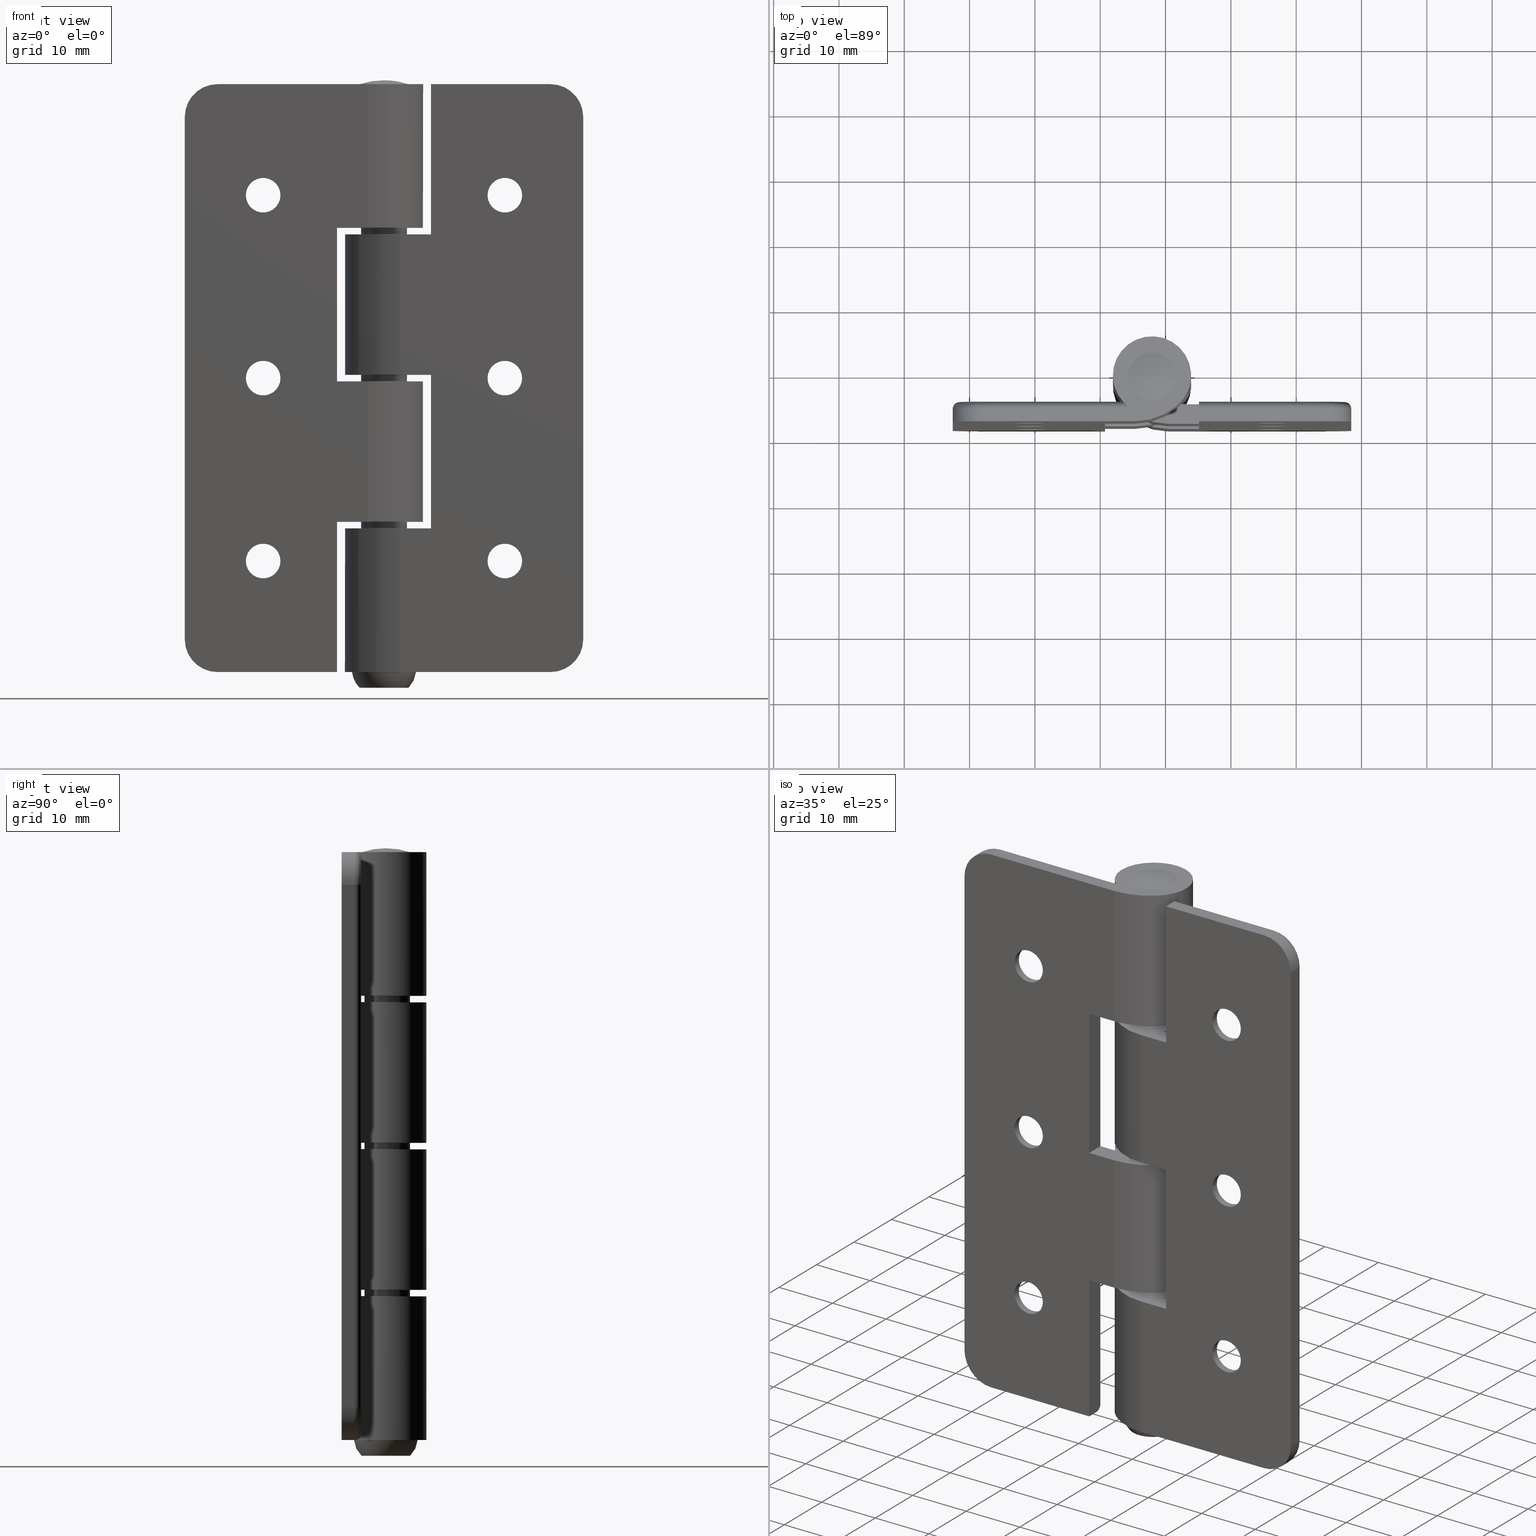
[diagram: canonical four-view strip — front | top / right | iso, engineering-drawing reading convention]
A machine part, canonical four-view strip (front | top / right | iso — engineering-drawing reading convention). The complete STEP part file that produces these views, byte-faithful:
ISO-10303-21;
HEADER;
/* Generated by software containing ST-Developer
 * from STEP Tools, Inc. (www.steptools.com) 
 */

FILE_DESCRIPTION(
/* description */ (''),
/* implementation_level */ '2;1');

FILE_NAME(
/* name */ '\\\\SYNOLOGYNAS\\web\\db2\\HH9061-30\\\X2\B3C4BA74\X0\\\HH
9061-30.stp',
/* time_stamp */ '2025-07-02T16:59:39+09:00',
/* author */ ('user'),
/* organization */ (''),
/* preprocessor_version */ 'ST-DEVELOPER v15.6',
/* originating_system */ 'Autodesk Inventor 2015',
/* authorisation */ '');

FILE_SCHEMA (('AUTOMOTIVE_DESIGN { 1 0 10303 214 3 1 1 }'));
ENDSEC;

DATA;
#10=MECHANICAL_DESIGN_GEOMETRIC_PRESENTATION_REPRESENTATION('',(#30,#31),
#1081);
#11=ITEM_DEFINED_TRANSFORMATION($,$,#598,#674);
#12=ITEM_DEFINED_TRANSFORMATION($,$,#598,#675);
#13=ITEM_DEFINED_TRANSFORMATION($,$,#660,#676);
#14=(
REPRESENTATION_RELATIONSHIP($,$,#1097,#1099)
REPRESENTATION_RELATIONSHIP_WITH_TRANSFORMATION(#11)
SHAPE_REPRESENTATION_RELATIONSHIP()
);
#15=(
REPRESENTATION_RELATIONSHIP($,$,#1097,#1099)
REPRESENTATION_RELATIONSHIP_WITH_TRANSFORMATION(#12)
SHAPE_REPRESENTATION_RELATIONSHIP()
);
#16=(
REPRESENTATION_RELATIONSHIP($,$,#1098,#1099)
REPRESENTATION_RELATIONSHIP_WITH_TRANSFORMATION(#13)
SHAPE_REPRESENTATION_RELATIONSHIP()
);
#17=CONTEXT_DEPENDENT_SHAPE_REPRESENTATION(#14,#1094);
#18=CONTEXT_DEPENDENT_SHAPE_REPRESENTATION(#15,#1095);
#19=CONTEXT_DEPENDENT_SHAPE_REPRESENTATION(#16,#1096);
#20=NEXT_ASSEMBLY_USAGE_OCCURRENCE('HH9061-30_L:1',$,$,#1103,#1101,$);
#21=NEXT_ASSEMBLY_USAGE_OCCURRENCE('HH9061-30_L:2',$,$,#1103,#1101,$);
#22=NEXT_ASSEMBLY_USAGE_OCCURRENCE('\X2\D540\X0\:1',$,$,#1103,#1102,$);
#23=SPHERICAL_SURFACE('',#671,12.01875);
#24=(
BOUNDED_CURVE()
B_SPLINE_CURVE(2,(#1060,#1061,#1062),.UNSPECIFIED.,.F.,.F.)
B_SPLINE_CURVE_WITH_KNOTS((3,3),(0.112648424039473,0.78103651293205),
 .UNSPECIFIED.)
CURVE()
GEOMETRIC_REPRESENTATION_ITEM()
RATIONAL_B_SPLINE_CURVE((1.,0.944674976214682,1.))
REPRESENTATION_ITEM('')
);
#25=(
BOUNDED_SURFACE()
B_SPLINE_SURFACE(2,2,((#1033,#1034,#1035,#1036,#1037,#1038,#1039,#1040,
#1041),(#1042,#1043,#1044,#1045,#1046,#1047,#1048,#1049,#1050),(#1051,#1052,
#1053,#1054,#1055,#1056,#1057,#1058,#1059)),.UNSPECIFIED.,.F.,.T.,.F.)
B_SPLINE_SURFACE_WITH_KNOTS((3,3),(3,2,2,2,3),(-0.78103651293205,-0.112648424039473),
(-3.14159265358979,-1.5707963267949,0.,1.5707963267949,3.14159265358979),
 .UNSPECIFIED.)
GEOMETRIC_REPRESENTATION_ITEM()
RATIONAL_B_SPLINE_SURFACE(((1.,0.707106781186548,1.,0.707106781186548,1.,
0.707106781186548,1.,0.707106781186548,1.),(0.944674976214682,0.667986081698642,
0.944674976214682,0.667986081698642,0.944674976214682,0.667986081698642,
0.944674976214682,0.667986081698642,0.944674976214682),(1.,0.707106781186548,
1.,0.707106781186548,1.,0.707106781186548,1.,0.707106781186548,1.)))
REPRESENTATION_ITEM('')
SURFACE()
);
#26=SHAPE_REPRESENTATION_RELATIONSHIP('SRR','None',#1097,#28);
#27=SHAPE_REPRESENTATION_RELATIONSHIP('SRR','None',#1098,#29);
#28=ADVANCED_BREP_SHAPE_REPRESENTATION($,(#32),#1078);
#29=ADVANCED_BREP_SHAPE_REPRESENTATION($,(#33),#1079);
#30=STYLED_ITEM('',(#1116),#32);
#31=STYLED_ITEM('',(#1117),#33);
#32=MANIFOLD_SOLID_BREP('\X2\C194B9ACB4DC\X0\1',#596);
#33=MANIFOLD_SOLID_BREP('\X2\C194B9ACB4DC\X0\1',#597);
#34=B_SPLINE_CURVE_WITH_KNOTS('',3,(#950,#951,#952,#953,#954,#955,#956,
#957,#958,#959),.UNSPECIFIED.,.F.,.F.,(4,2,2,2,4),(0.547827043796239,0.584064220115097,
0.620301396433955,0.681634970866134,0.742968545298314),.UNSPECIFIED.);
#35=PLANE('',#623);
#36=PLANE('',#624);
#37=PLANE('',#634);
#38=PLANE('',#638);
#39=PLANE('',#639);
#40=PLANE('',#640);
#41=PLANE('',#644);
#42=PLANE('',#648);
#43=PLANE('',#649);
#44=PLANE('',#655);
#45=PLANE('',#661);
#46=PLANE('',#665);
#47=PLANE('',#668);
#48=LINE('',#906,#81);
#49=LINE('',#907,#82);
#50=LINE('',#910,#83);
#51=LINE('',#913,#84);
#52=LINE('',#916,#85);
#53=LINE('',#917,#86);
#54=LINE('',#920,#87);
#55=LINE('',#922,#88);
#56=LINE('',#924,#89);
#57=LINE('',#926,#90);
#58=LINE('',#928,#91);
#59=LINE('',#930,#92);
#60=LINE('',#932,#93);
#61=LINE('',#934,#94);
#62=LINE('',#936,#95);
#63=LINE('',#945,#96);
#64=LINE('',#948,#97);
#65=LINE('',#960,#98);
#66=LINE('',#963,#99);
#67=LINE('',#966,#100);
#68=LINE('',#974,#101);
#69=LINE('',#977,#102);
#70=LINE('',#978,#103);
#71=LINE('',#981,#104);
#72=LINE('',#989,#105);
#73=LINE('',#991,#106);
#74=LINE('',#999,#107);
#75=LINE('',#1000,#108);
#76=LINE('',#1006,#109);
#77=LINE('',#1010,#110);
#78=LINE('',#1012,#111);
#79=LINE('',#1014,#112);
#80=LINE('',#1015,#113);
#81=VECTOR('',#723,2.);
#82=VECTOR('',#724,2.);
#83=VECTOR('',#727,80.);
#84=VECTOR('',#730,80.);
#85=VECTOR('',#733,80.);
#86=VECTOR('',#734,2.);
#87=VECTOR('',#737,18.3093034241836);
#88=VECTOR('',#738,23.);
#89=VECTOR('',#739,4.69069657581639);
#90=VECTOR('',#740,21.5);
#91=VECTOR('',#741,4.69069657581639);
#92=VECTOR('',#742,23.5);
#93=VECTOR('',#743,4.69069657581638);
#94=VECTOR('',#744,22.);
#95=VECTOR('',#745,23.);
#96=VECTOR('',#758,2.);
#97=VECTOR('',#761,22.1833752096446);
#98=VECTOR('',#762,21.0278640450004);
#99=VECTOR('',#765,18.3093034241836);
#100=VECTOR('',#768,18.3093034241836);
#101=VECTOR('',#779,2.);
#102=VECTOR('',#782,22.);
#103=VECTOR('',#783,3.);
#104=VECTOR('',#786,2.71856062081681);
#105=VECTOR('',#795,3.);
#106=VECTOR('',#796,2.7185606208168);
#107=VECTOR('',#805,3.);
#108=VECTOR('',#806,23.5);
#109=VECTOR('',#813,2.71856062081681);
#110=VECTOR('',#818,22.);
#111=VECTOR('',#821,21.5);
#112=VECTOR('',#824,21.);
#113=VECTOR('',#825,21.5);
#114=TOROIDAL_SURFACE('',#614,4.,1.);
#115=TOROIDAL_SURFACE('',#626,4.,1.);
#116=CYLINDRICAL_SURFACE('',#602,2.65);
#117=CYLINDRICAL_SURFACE('',#607,2.65);
#118=CYLINDRICAL_SURFACE('',#612,2.65);
#119=CYLINDRICAL_SURFACE('',#619,5.);
#120=CYLINDRICAL_SURFACE('',#621,1.);
#121=CYLINDRICAL_SURFACE('',#630,5.);
#122=CYLINDRICAL_SURFACE('',#631,1.);
#123=CYLINDRICAL_SURFACE('',#632,1.);
#124=CYLINDRICAL_SURFACE('',#653,9.6053736426417);
#125=CYLINDRICAL_SURFACE('',#654,9.6053736426417);
#126=CYLINDRICAL_SURFACE('',#656,6.);
#127=CYLINDRICAL_SURFACE('',#657,3.5);
#128=CYLINDRICAL_SURFACE('',#658,3.5);
#129=CYLINDRICAL_SURFACE('',#659,6.);
#130=CYLINDRICAL_SURFACE('',#672,3.5);
#131=FACE_BOUND('',#188,.T.);
#132=FACE_BOUND('',#190,.T.);
#133=FACE_BOUND('',#192,.T.);
#134=FACE_BOUND('',#194,.T.);
#135=FACE_BOUND('',#196,.T.);
#136=FACE_BOUND('',#198,.T.);
#137=FACE_BOUND('',#204,.T.);
#138=FACE_BOUND('',#205,.T.);
#139=FACE_BOUND('',#206,.T.);
#140=FACE_BOUND('',#212,.T.);
#141=FACE_BOUND('',#216,.T.);
#142=FACE_BOUND('',#218,.T.);
#143=FACE_BOUND('',#221,.T.);
#144=FACE_BOUND('',#225,.T.);
#145=FACE_BOUND('',#226,.T.);
#146=FACE_BOUND('',#227,.T.);
#147=FACE_BOUND('',#230,.T.);
#148=FACE_BOUND('',#232,.T.);
#149=FACE_BOUND('',#235,.T.);
#150=FACE_BOUND('',#239,.T.);
#151=FACE_BOUND('',#242,.T.);
#152=FACE_OUTER_BOUND('',#187,.T.);
#153=FACE_OUTER_BOUND('',#189,.T.);
#154=FACE_OUTER_BOUND('',#191,.T.);
#155=FACE_OUTER_BOUND('',#193,.T.);
#156=FACE_OUTER_BOUND('',#195,.T.);
#157=FACE_OUTER_BOUND('',#197,.T.);
#158=FACE_OUTER_BOUND('',#199,.T.);
#159=FACE_OUTER_BOUND('',#200,.T.);
#160=FACE_OUTER_BOUND('',#201,.T.);
#161=FACE_OUTER_BOUND('',#202,.T.);
#162=FACE_OUTER_BOUND('',#203,.T.);
#163=FACE_OUTER_BOUND('',#207,.T.);
#164=FACE_OUTER_BOUND('',#208,.T.);
#165=FACE_OUTER_BOUND('',#209,.T.);
#166=FACE_OUTER_BOUND('',#210,.T.);
#167=FACE_OUTER_BOUND('',#211,.T.);
#168=FACE_OUTER_BOUND('',#213,.T.);
#169=FACE_OUTER_BOUND('',#214,.T.);
#170=FACE_OUTER_BOUND('',#215,.T.);
#171=FACE_OUTER_BOUND('',#217,.T.);
#172=FACE_OUTER_BOUND('',#219,.T.);
#173=FACE_OUTER_BOUND('',#220,.T.);
#174=FACE_OUTER_BOUND('',#222,.T.);
#175=FACE_OUTER_BOUND('',#223,.T.);
#176=FACE_OUTER_BOUND('',#224,.T.);
#177=FACE_OUTER_BOUND('',#228,.T.);
#178=FACE_OUTER_BOUND('',#229,.T.);
#179=FACE_OUTER_BOUND('',#231,.T.);
#180=FACE_OUTER_BOUND('',#233,.T.);
#181=FACE_OUTER_BOUND('',#234,.T.);
#182=FACE_OUTER_BOUND('',#236,.T.);
#183=FACE_OUTER_BOUND('',#237,.T.);
#184=FACE_OUTER_BOUND('',#238,.T.);
#185=FACE_OUTER_BOUND('',#240,.T.);
#186=FACE_OUTER_BOUND('',#241,.T.);
#187=EDGE_LOOP('',(#410));
#188=EDGE_LOOP('',(#411));
#189=EDGE_LOOP('',(#412));
#190=EDGE_LOOP('',(#413));
#191=EDGE_LOOP('',(#414));
#192=EDGE_LOOP('',(#415));
#193=EDGE_LOOP('',(#416));
#194=EDGE_LOOP('',(#417));
#195=EDGE_LOOP('',(#418));
#196=EDGE_LOOP('',(#419));
#197=EDGE_LOOP('',(#420));
#198=EDGE_LOOP('',(#421));
#199=EDGE_LOOP('',(#422,#423,#424,#425));
#200=EDGE_LOOP('',(#426,#427,#428,#429));
#201=EDGE_LOOP('',(#430,#431,#432,#433));
#202=EDGE_LOOP('',(#434,#435,#436,#437));
#203=EDGE_LOOP('',(#438,#439,#440,#441,#442,#443,#444,#445,#446,#447,#448,
#449));
#204=EDGE_LOOP('',(#450));
#205=EDGE_LOOP('',(#451));
#206=EDGE_LOOP('',(#452));
#207=EDGE_LOOP('',(#453,#454,#455,#456));
#208=EDGE_LOOP('',(#457,#458,#459,#460));
#209=EDGE_LOOP('',(#461,#462,#463,#464));
#210=EDGE_LOOP('',(#465,#466,#467,#468));
#211=EDGE_LOOP('',(#469,#470,#471,#472,#473));
#212=EDGE_LOOP('',(#474));
#213=EDGE_LOOP('',(#475,#476,#477,#478));
#214=EDGE_LOOP('',(#479,#480,#481,#482,#483));
#215=EDGE_LOOP('',(#484,#485,#486,#487,#488));
#216=EDGE_LOOP('',(#489));
#217=EDGE_LOOP('',(#490,#491,#492,#493,#494));
#218=EDGE_LOOP('',(#495));
#219=EDGE_LOOP('',(#496,#497,#498,#499));
#220=EDGE_LOOP('',(#500,#501,#502,#503,#504));
#221=EDGE_LOOP('',(#505));
#222=EDGE_LOOP('',(#506,#507,#508,#509));
#223=EDGE_LOOP('',(#510,#511,#512,#513));
#224=EDGE_LOOP('',(#514,#515,#516,#517,#518,#519,#520,#521,#522,#523,#524,
#525));
#225=EDGE_LOOP('',(#526));
#226=EDGE_LOOP('',(#527));
#227=EDGE_LOOP('',(#528));
#228=EDGE_LOOP('',(#529,#530,#531,#532,#533));
#229=EDGE_LOOP('',(#534));
#230=EDGE_LOOP('',(#535));
#231=EDGE_LOOP('',(#536));
#232=EDGE_LOOP('',(#537));
#233=EDGE_LOOP('',(#538,#539,#540,#541));
#234=EDGE_LOOP('',(#542,#543));
#235=EDGE_LOOP('',(#544));
#236=EDGE_LOOP('',(#545,#546));
#237=EDGE_LOOP('',(#547,#548,#549,#550,#551,#552));
#238=EDGE_LOOP('',(#553));
#239=EDGE_LOOP('',(#554));
#240=EDGE_LOOP('',(#555));
#241=EDGE_LOOP('',(#556));
#242=EDGE_LOOP('',(#557));
#243=CIRCLE('',#600,4.5);
#244=CIRCLE('',#601,2.65);
#245=CIRCLE('',#603,2.65);
#246=CIRCLE('',#605,4.5);
#247=CIRCLE('',#606,2.65);
#248=CIRCLE('',#608,2.65);
#249=CIRCLE('',#610,4.5);
#250=CIRCLE('',#611,2.65);
#251=CIRCLE('',#613,2.65);
#252=CIRCLE('',#615,1.);
#253=CIRCLE('',#616,5.);
#254=CIRCLE('',#617,1.);
#255=CIRCLE('',#618,4.);
#256=CIRCLE('',#620,5.);
#257=CIRCLE('',#622,1.);
#258=CIRCLE('',#625,5.);
#259=CIRCLE('',#627,5.);
#260=CIRCLE('',#628,1.);
#261=CIRCLE('',#629,4.);
#262=CIRCLE('',#633,1.);
#263=CIRCLE('',#635,9.6053736426417);
#264=CIRCLE('',#636,6.);
#265=CIRCLE('',#637,3.5);
#266=CIRCLE('',#641,6.);
#267=CIRCLE('',#642,9.6053736426417);
#268=CIRCLE('',#643,3.5);
#269=CIRCLE('',#645,6.);
#270=CIRCLE('',#646,9.6053736426417);
#271=CIRCLE('',#647,3.5);
#272=CIRCLE('',#650,9.6053736426417);
#273=CIRCLE('',#651,6.);
#274=CIRCLE('',#652,3.5);
#275=CIRCLE('',#662,4.9);
#276=CIRCLE('',#663,4.9);
#277=CIRCLE('',#664,3.5);
#278=CIRCLE('',#666,3.75);
#279=CIRCLE('',#667,3.75);
#280=CIRCLE('',#669,3.75);
#281=CIRCLE('',#670,3.5);
#282=VERTEX_POINT('',#870);
#283=VERTEX_POINT('',#872);
#284=VERTEX_POINT('',#875);
#285=VERTEX_POINT('',#878);
#286=VERTEX_POINT('',#880);
#287=VERTEX_POINT('',#883);
#288=VERTEX_POINT('',#886);
#289=VERTEX_POINT('',#888);
#290=VERTEX_POINT('',#891);
#291=VERTEX_POINT('',#894);
#292=VERTEX_POINT('',#895);
#293=VERTEX_POINT('',#897);
#294=VERTEX_POINT('',#899);
#295=VERTEX_POINT('',#903);
#296=VERTEX_POINT('',#904);
#297=VERTEX_POINT('',#909);
#298=VERTEX_POINT('',#911);
#299=VERTEX_POINT('',#915);
#300=VERTEX_POINT('',#919);
#301=VERTEX_POINT('',#921);
#302=VERTEX_POINT('',#923);
#303=VERTEX_POINT('',#925);
#304=VERTEX_POINT('',#927);
#305=VERTEX_POINT('',#929);
#306=VERTEX_POINT('',#931);
#307=VERTEX_POINT('',#933);
#308=VERTEX_POINT('',#935);
#309=VERTEX_POINT('',#939);
#310=VERTEX_POINT('',#941);
#311=VERTEX_POINT('',#947);
#312=VERTEX_POINT('',#949);
#313=VERTEX_POINT('',#962);
#314=VERTEX_POINT('',#964);
#315=VERTEX_POINT('',#968);
#316=VERTEX_POINT('',#971);
#317=VERTEX_POINT('',#976);
#318=VERTEX_POINT('',#980);
#319=VERTEX_POINT('',#982);
#320=VERTEX_POINT('',#985);
#321=VERTEX_POINT('',#988);
#322=VERTEX_POINT('',#990);
#323=VERTEX_POINT('',#992);
#324=VERTEX_POINT('',#995);
#325=VERTEX_POINT('',#998);
#326=VERTEX_POINT('',#1002);
#327=VERTEX_POINT('',#1004);
#328=VERTEX_POINT('',#1007);
#329=VERTEX_POINT('',#1022);
#330=VERTEX_POINT('',#1023);
#331=VERTEX_POINT('',#1026);
#332=VERTEX_POINT('',#1029);
#333=VERTEX_POINT('',#1030);
#334=VERTEX_POINT('',#1064);
#335=VERTEX_POINT('',#1066);
#336=EDGE_CURVE('',#282,#282,#243,.T.);
#337=EDGE_CURVE('',#283,#283,#244,.T.);
#338=EDGE_CURVE('',#284,#284,#245,.T.);
#339=EDGE_CURVE('',#285,#285,#246,.T.);
#340=EDGE_CURVE('',#286,#286,#247,.T.);
#341=EDGE_CURVE('',#287,#287,#248,.T.);
#342=EDGE_CURVE('',#288,#288,#249,.T.);
#343=EDGE_CURVE('',#289,#289,#250,.T.);
#344=EDGE_CURVE('',#290,#290,#251,.T.);
#345=EDGE_CURVE('',#291,#292,#252,.T.);
#346=EDGE_CURVE('',#292,#293,#253,.T.);
#347=EDGE_CURVE('',#293,#294,#254,.T.);
#348=EDGE_CURVE('',#294,#291,#255,.T.);
#349=EDGE_CURVE('',#295,#296,#256,.T.);
#350=EDGE_CURVE('',#296,#293,#48,.T.);
#351=EDGE_CURVE('',#292,#295,#49,.T.);
#352=EDGE_CURVE('',#293,#297,#50,.T.);
#353=EDGE_CURVE('',#298,#297,#257,.T.);
#354=EDGE_CURVE('',#298,#294,#51,.T.);
#355=EDGE_CURVE('',#299,#296,#52,.T.);
#356=EDGE_CURVE('',#297,#299,#53,.T.);
#357=EDGE_CURVE('',#300,#295,#54,.T.);
#358=EDGE_CURVE('',#300,#301,#55,.T.);
#359=EDGE_CURVE('',#301,#302,#56,.T.);
#360=EDGE_CURVE('',#303,#302,#57,.T.);
#361=EDGE_CURVE('',#303,#304,#58,.T.);
#362=EDGE_CURVE('',#304,#305,#59,.T.);
#363=EDGE_CURVE('',#305,#306,#60,.T.);
#364=EDGE_CURVE('',#307,#306,#61,.T.);
#365=EDGE_CURVE('',#307,#308,#62,.T.);
#366=EDGE_CURVE('',#299,#308,#258,.T.);
#367=EDGE_CURVE('',#297,#309,#259,.T.);
#368=EDGE_CURVE('',#309,#310,#260,.T.);
#369=EDGE_CURVE('',#310,#298,#261,.T.);
#370=EDGE_CURVE('',#308,#309,#63,.T.);
#371=EDGE_CURVE('',#309,#311,#64,.T.);
#372=EDGE_CURVE('',#311,#312,#34,.F.);
#373=EDGE_CURVE('',#312,#310,#65,.T.);
#374=EDGE_CURVE('',#291,#313,#66,.T.);
#375=EDGE_CURVE('',#313,#314,#262,.T.);
#376=EDGE_CURVE('',#314,#292,#67,.T.);
#377=EDGE_CURVE('',#315,#307,#263,.T.);
#378=EDGE_CURVE('',#311,#315,#264,.T.);
#379=EDGE_CURVE('',#316,#316,#265,.T.);
#380=EDGE_CURVE('',#314,#300,#68,.T.);
#381=EDGE_CURVE('',#317,#313,#69,.T.);
#382=EDGE_CURVE('',#317,#301,#70,.T.);
#383=EDGE_CURVE('',#318,#317,#71,.T.);
#384=EDGE_CURVE('',#319,#318,#266,.T.);
#385=EDGE_CURVE('',#302,#319,#267,.T.);
#386=EDGE_CURVE('',#320,#320,#268,.T.);
#387=EDGE_CURVE('',#321,#305,#72,.T.);
#388=EDGE_CURVE('',#322,#321,#73,.T.);
#389=EDGE_CURVE('',#323,#322,#269,.T.);
#390=EDGE_CURVE('',#306,#323,#270,.T.);
#391=EDGE_CURVE('',#324,#324,#271,.T.);
#392=EDGE_CURVE('',#304,#325,#74,.T.);
#393=EDGE_CURVE('',#321,#325,#75,.T.);
#394=EDGE_CURVE('',#326,#303,#272,.T.);
#395=EDGE_CURVE('',#327,#326,#273,.T.);
#396=EDGE_CURVE('',#325,#327,#76,.T.);
#397=EDGE_CURVE('',#328,#328,#274,.T.);
#398=EDGE_CURVE('',#315,#323,#77,.T.);
#399=EDGE_CURVE('',#326,#319,#78,.T.);
#400=EDGE_CURVE('',#312,#322,#79,.T.);
#401=EDGE_CURVE('',#327,#318,#80,.T.);
#402=EDGE_CURVE('',#329,#330,#275,.T.);
#403=EDGE_CURVE('',#330,#329,#276,.T.);
#404=EDGE_CURVE('',#331,#331,#277,.T.);
#405=EDGE_CURVE('',#332,#333,#278,.T.);
#406=EDGE_CURVE('',#333,#332,#279,.T.);
#407=EDGE_CURVE('',#330,#333,#24,.T.);
#408=EDGE_CURVE('',#334,#334,#280,.T.);
#409=EDGE_CURVE('',#335,#335,#281,.T.);
#410=ORIENTED_EDGE('',*,*,#336,.F.);
#411=ORIENTED_EDGE('',*,*,#337,.F.);
#412=ORIENTED_EDGE('',*,*,#338,.F.);
#413=ORIENTED_EDGE('',*,*,#337,.T.);
#414=ORIENTED_EDGE('',*,*,#339,.F.);
#415=ORIENTED_EDGE('',*,*,#340,.F.);
#416=ORIENTED_EDGE('',*,*,#341,.F.);
#417=ORIENTED_EDGE('',*,*,#340,.T.);
#418=ORIENTED_EDGE('',*,*,#342,.F.);
#419=ORIENTED_EDGE('',*,*,#343,.F.);
#420=ORIENTED_EDGE('',*,*,#344,.F.);
#421=ORIENTED_EDGE('',*,*,#343,.T.);
#422=ORIENTED_EDGE('',*,*,#345,.T.);
#423=ORIENTED_EDGE('',*,*,#346,.T.);
#424=ORIENTED_EDGE('',*,*,#347,.T.);
#425=ORIENTED_EDGE('',*,*,#348,.T.);
#426=ORIENTED_EDGE('',*,*,#349,.T.);
#427=ORIENTED_EDGE('',*,*,#350,.T.);
#428=ORIENTED_EDGE('',*,*,#346,.F.);
#429=ORIENTED_EDGE('',*,*,#351,.T.);
#430=ORIENTED_EDGE('',*,*,#347,.F.);
#431=ORIENTED_EDGE('',*,*,#352,.T.);
#432=ORIENTED_EDGE('',*,*,#353,.F.);
#433=ORIENTED_EDGE('',*,*,#354,.T.);
#434=ORIENTED_EDGE('',*,*,#350,.F.);
#435=ORIENTED_EDGE('',*,*,#355,.F.);
#436=ORIENTED_EDGE('',*,*,#356,.F.);
#437=ORIENTED_EDGE('',*,*,#352,.F.);
#438=ORIENTED_EDGE('',*,*,#349,.F.);
#439=ORIENTED_EDGE('',*,*,#357,.F.);
#440=ORIENTED_EDGE('',*,*,#358,.T.);
#441=ORIENTED_EDGE('',*,*,#359,.T.);
#442=ORIENTED_EDGE('',*,*,#360,.F.);
#443=ORIENTED_EDGE('',*,*,#361,.T.);
#444=ORIENTED_EDGE('',*,*,#362,.T.);
#445=ORIENTED_EDGE('',*,*,#363,.T.);
#446=ORIENTED_EDGE('',*,*,#364,.F.);
#447=ORIENTED_EDGE('',*,*,#365,.T.);
#448=ORIENTED_EDGE('',*,*,#366,.F.);
#449=ORIENTED_EDGE('',*,*,#355,.T.);
#450=ORIENTED_EDGE('',*,*,#338,.T.);
#451=ORIENTED_EDGE('',*,*,#341,.T.);
#452=ORIENTED_EDGE('',*,*,#344,.T.);
#453=ORIENTED_EDGE('',*,*,#353,.T.);
#454=ORIENTED_EDGE('',*,*,#367,.T.);
#455=ORIENTED_EDGE('',*,*,#368,.T.);
#456=ORIENTED_EDGE('',*,*,#369,.T.);
#457=ORIENTED_EDGE('',*,*,#366,.T.);
#458=ORIENTED_EDGE('',*,*,#370,.T.);
#459=ORIENTED_EDGE('',*,*,#367,.F.);
#460=ORIENTED_EDGE('',*,*,#356,.T.);
#461=ORIENTED_EDGE('',*,*,#368,.F.);
#462=ORIENTED_EDGE('',*,*,#371,.T.);
#463=ORIENTED_EDGE('',*,*,#372,.T.);
#464=ORIENTED_EDGE('',*,*,#373,.T.);
#465=ORIENTED_EDGE('',*,*,#345,.F.);
#466=ORIENTED_EDGE('',*,*,#374,.T.);
#467=ORIENTED_EDGE('',*,*,#375,.T.);
#468=ORIENTED_EDGE('',*,*,#376,.T.);
#469=ORIENTED_EDGE('',*,*,#370,.F.);
#470=ORIENTED_EDGE('',*,*,#365,.F.);
#471=ORIENTED_EDGE('',*,*,#377,.F.);
#472=ORIENTED_EDGE('',*,*,#378,.F.);
#473=ORIENTED_EDGE('',*,*,#371,.F.);
#474=ORIENTED_EDGE('',*,*,#379,.T.);
#475=ORIENTED_EDGE('',*,*,#351,.F.);
#476=ORIENTED_EDGE('',*,*,#376,.F.);
#477=ORIENTED_EDGE('',*,*,#380,.T.);
#478=ORIENTED_EDGE('',*,*,#357,.T.);
#479=ORIENTED_EDGE('',*,*,#375,.F.);
#480=ORIENTED_EDGE('',*,*,#381,.F.);
#481=ORIENTED_EDGE('',*,*,#382,.T.);
#482=ORIENTED_EDGE('',*,*,#358,.F.);
#483=ORIENTED_EDGE('',*,*,#380,.F.);
#484=ORIENTED_EDGE('',*,*,#359,.F.);
#485=ORIENTED_EDGE('',*,*,#382,.F.);
#486=ORIENTED_EDGE('',*,*,#383,.F.);
#487=ORIENTED_EDGE('',*,*,#384,.F.);
#488=ORIENTED_EDGE('',*,*,#385,.F.);
#489=ORIENTED_EDGE('',*,*,#386,.F.);
#490=ORIENTED_EDGE('',*,*,#363,.F.);
#491=ORIENTED_EDGE('',*,*,#387,.F.);
#492=ORIENTED_EDGE('',*,*,#388,.F.);
#493=ORIENTED_EDGE('',*,*,#389,.F.);
#494=ORIENTED_EDGE('',*,*,#390,.F.);
#495=ORIENTED_EDGE('',*,*,#391,.F.);
#496=ORIENTED_EDGE('',*,*,#362,.F.);
#497=ORIENTED_EDGE('',*,*,#392,.T.);
#498=ORIENTED_EDGE('',*,*,#393,.F.);
#499=ORIENTED_EDGE('',*,*,#387,.T.);
#500=ORIENTED_EDGE('',*,*,#361,.F.);
#501=ORIENTED_EDGE('',*,*,#394,.F.);
#502=ORIENTED_EDGE('',*,*,#395,.F.);
#503=ORIENTED_EDGE('',*,*,#396,.F.);
#504=ORIENTED_EDGE('',*,*,#392,.F.);
#505=ORIENTED_EDGE('',*,*,#397,.F.);
#506=ORIENTED_EDGE('',*,*,#390,.T.);
#507=ORIENTED_EDGE('',*,*,#398,.F.);
#508=ORIENTED_EDGE('',*,*,#377,.T.);
#509=ORIENTED_EDGE('',*,*,#364,.T.);
#510=ORIENTED_EDGE('',*,*,#385,.T.);
#511=ORIENTED_EDGE('',*,*,#399,.F.);
#512=ORIENTED_EDGE('',*,*,#394,.T.);
#513=ORIENTED_EDGE('',*,*,#360,.T.);
#514=ORIENTED_EDGE('',*,*,#348,.F.);
#515=ORIENTED_EDGE('',*,*,#354,.F.);
#516=ORIENTED_EDGE('',*,*,#369,.F.);
#517=ORIENTED_EDGE('',*,*,#373,.F.);
#518=ORIENTED_EDGE('',*,*,#400,.T.);
#519=ORIENTED_EDGE('',*,*,#388,.T.);
#520=ORIENTED_EDGE('',*,*,#393,.T.);
#521=ORIENTED_EDGE('',*,*,#396,.T.);
#522=ORIENTED_EDGE('',*,*,#401,.T.);
#523=ORIENTED_EDGE('',*,*,#383,.T.);
#524=ORIENTED_EDGE('',*,*,#381,.T.);
#525=ORIENTED_EDGE('',*,*,#374,.F.);
#526=ORIENTED_EDGE('',*,*,#336,.T.);
#527=ORIENTED_EDGE('',*,*,#339,.T.);
#528=ORIENTED_EDGE('',*,*,#342,.T.);
#529=ORIENTED_EDGE('',*,*,#389,.T.);
#530=ORIENTED_EDGE('',*,*,#400,.F.);
#531=ORIENTED_EDGE('',*,*,#372,.F.);
#532=ORIENTED_EDGE('',*,*,#378,.T.);
#533=ORIENTED_EDGE('',*,*,#398,.T.);
#534=ORIENTED_EDGE('',*,*,#379,.F.);
#535=ORIENTED_EDGE('',*,*,#391,.T.);
#536=ORIENTED_EDGE('',*,*,#386,.T.);
#537=ORIENTED_EDGE('',*,*,#397,.T.);
#538=ORIENTED_EDGE('',*,*,#384,.T.);
#539=ORIENTED_EDGE('',*,*,#401,.F.);
#540=ORIENTED_EDGE('',*,*,#395,.T.);
#541=ORIENTED_EDGE('',*,*,#399,.T.);
#542=ORIENTED_EDGE('',*,*,#402,.T.);
#543=ORIENTED_EDGE('',*,*,#403,.T.);
#544=ORIENTED_EDGE('',*,*,#404,.F.);
#545=ORIENTED_EDGE('',*,*,#405,.F.);
#546=ORIENTED_EDGE('',*,*,#406,.F.);
#547=ORIENTED_EDGE('',*,*,#402,.F.);
#548=ORIENTED_EDGE('',*,*,#403,.F.);
#549=ORIENTED_EDGE('',*,*,#407,.T.);
#550=ORIENTED_EDGE('',*,*,#406,.T.);
#551=ORIENTED_EDGE('',*,*,#405,.T.);
#552=ORIENTED_EDGE('',*,*,#407,.F.);
#553=ORIENTED_EDGE('',*,*,#408,.T.);
#554=ORIENTED_EDGE('',*,*,#409,.F.);
#555=ORIENTED_EDGE('',*,*,#408,.F.);
#556=ORIENTED_EDGE('',*,*,#404,.T.);
#557=ORIENTED_EDGE('',*,*,#409,.T.);
#558=CONICAL_SURFACE('',#599,3.575,45.);
#559=CONICAL_SURFACE('',#604,3.575,45.);
#560=CONICAL_SURFACE('',#609,3.575,45.);
#561=ADVANCED_FACE('',(#152,#131),#558,.F.);
#562=ADVANCED_FACE('',(#153,#132),#116,.F.);
#563=ADVANCED_FACE('',(#154,#133),#559,.F.);
#564=ADVANCED_FACE('',(#155,#134),#117,.F.);
#565=ADVANCED_FACE('',(#156,#135),#560,.F.);
#566=ADVANCED_FACE('',(#157,#136),#118,.F.);
#567=ADVANCED_FACE('',(#158),#114,.T.);
#568=ADVANCED_FACE('',(#159),#119,.T.);
#569=ADVANCED_FACE('',(#160),#120,.T.);
#570=ADVANCED_FACE('',(#161),#35,.T.);
#571=ADVANCED_FACE('',(#162,#137,#138,#139),#36,.T.);
#572=ADVANCED_FACE('',(#163),#115,.T.);
#573=ADVANCED_FACE('',(#164),#121,.T.);
#574=ADVANCED_FACE('',(#165),#122,.T.);
#575=ADVANCED_FACE('',(#166),#123,.T.);
#576=ADVANCED_FACE('',(#167,#140),#37,.T.);
#577=ADVANCED_FACE('',(#168),#38,.F.);
#578=ADVANCED_FACE('',(#169),#39,.F.);
#579=ADVANCED_FACE('',(#170,#141),#40,.F.);
#580=ADVANCED_FACE('',(#171,#142),#41,.F.);
#581=ADVANCED_FACE('',(#172),#42,.F.);
#582=ADVANCED_FACE('',(#173,#143),#43,.F.);
#583=ADVANCED_FACE('',(#174),#124,.T.);
#584=ADVANCED_FACE('',(#175),#125,.T.);
#585=ADVANCED_FACE('',(#176,#144,#145,#146),#44,.T.);
#586=ADVANCED_FACE('',(#177),#126,.T.);
#587=ADVANCED_FACE('',(#178,#147),#127,.F.);
#588=ADVANCED_FACE('',(#179,#148),#128,.F.);
#589=ADVANCED_FACE('',(#180),#129,.T.);
#590=ADVANCED_FACE('',(#181,#149),#45,.T.);
#591=ADVANCED_FACE('',(#182),#46,.T.);
#592=ADVANCED_FACE('',(#183),#25,.F.);
#593=ADVANCED_FACE('',(#184,#150),#47,.T.);
#594=ADVANCED_FACE('',(#185),#23,.T.);
#595=ADVANCED_FACE('',(#186,#151),#130,.T.);
#596=CLOSED_SHELL('',(#561,#562,#563,#564,#565,#566,#567,#568,#569,#570,
#571,#572,#573,#574,#575,#576,#577,#578,#579,#580,#581,#582,#583,#584,#585,
#586,#587,#588,#589));
#597=CLOSED_SHELL('',(#590,#591,#592,#593,#594,#595));
#598=AXIS2_PLACEMENT_3D('placement',#868,#677,#678);
#599=AXIS2_PLACEMENT_3D('',#869,#679,#680);
#600=AXIS2_PLACEMENT_3D('',#871,#681,#682);
#601=AXIS2_PLACEMENT_3D('',#873,#683,#684);
#602=AXIS2_PLACEMENT_3D('',#874,#685,#686);
#603=AXIS2_PLACEMENT_3D('',#876,#687,#688);
#604=AXIS2_PLACEMENT_3D('',#877,#689,#690);
#605=AXIS2_PLACEMENT_3D('',#879,#691,#692);
#606=AXIS2_PLACEMENT_3D('',#881,#693,#694);
#607=AXIS2_PLACEMENT_3D('',#882,#695,#696);
#608=AXIS2_PLACEMENT_3D('',#884,#697,#698);
#609=AXIS2_PLACEMENT_3D('',#885,#699,#700);
#610=AXIS2_PLACEMENT_3D('',#887,#701,#702);
#611=AXIS2_PLACEMENT_3D('',#889,#703,#704);
#612=AXIS2_PLACEMENT_3D('',#890,#705,#706);
#613=AXIS2_PLACEMENT_3D('',#892,#707,#708);
#614=AXIS2_PLACEMENT_3D('',#893,#709,#710);
#615=AXIS2_PLACEMENT_3D('',#896,#711,#712);
#616=AXIS2_PLACEMENT_3D('',#898,#713,#714);
#617=AXIS2_PLACEMENT_3D('',#900,#715,#716);
#618=AXIS2_PLACEMENT_3D('',#901,#717,#718);
#619=AXIS2_PLACEMENT_3D('',#902,#719,#720);
#620=AXIS2_PLACEMENT_3D('',#905,#721,#722);
#621=AXIS2_PLACEMENT_3D('',#908,#725,#726);
#622=AXIS2_PLACEMENT_3D('',#912,#728,#729);
#623=AXIS2_PLACEMENT_3D('',#914,#731,#732);
#624=AXIS2_PLACEMENT_3D('',#918,#735,#736);
#625=AXIS2_PLACEMENT_3D('',#937,#746,#747);
#626=AXIS2_PLACEMENT_3D('',#938,#748,#749);
#627=AXIS2_PLACEMENT_3D('',#940,#750,#751);
#628=AXIS2_PLACEMENT_3D('',#942,#752,#753);
#629=AXIS2_PLACEMENT_3D('',#943,#754,#755);
#630=AXIS2_PLACEMENT_3D('',#944,#756,#757);
#631=AXIS2_PLACEMENT_3D('',#946,#759,#760);
#632=AXIS2_PLACEMENT_3D('',#961,#763,#764);
#633=AXIS2_PLACEMENT_3D('',#965,#766,#767);
#634=AXIS2_PLACEMENT_3D('',#967,#769,#770);
#635=AXIS2_PLACEMENT_3D('',#969,#771,#772);
#636=AXIS2_PLACEMENT_3D('',#970,#773,#774);
#637=AXIS2_PLACEMENT_3D('',#972,#775,#776);
#638=AXIS2_PLACEMENT_3D('',#973,#777,#778);
#639=AXIS2_PLACEMENT_3D('',#975,#780,#781);
#640=AXIS2_PLACEMENT_3D('',#979,#784,#785);
#641=AXIS2_PLACEMENT_3D('',#983,#787,#788);
#642=AXIS2_PLACEMENT_3D('',#984,#789,#790);
#643=AXIS2_PLACEMENT_3D('',#986,#791,#792);
#644=AXIS2_PLACEMENT_3D('',#987,#793,#794);
#645=AXIS2_PLACEMENT_3D('',#993,#797,#798);
#646=AXIS2_PLACEMENT_3D('',#994,#799,#800);
#647=AXIS2_PLACEMENT_3D('',#996,#801,#802);
#648=AXIS2_PLACEMENT_3D('',#997,#803,#804);
#649=AXIS2_PLACEMENT_3D('',#1001,#807,#808);
#650=AXIS2_PLACEMENT_3D('',#1003,#809,#810);
#651=AXIS2_PLACEMENT_3D('',#1005,#811,#812);
#652=AXIS2_PLACEMENT_3D('',#1008,#814,#815);
#653=AXIS2_PLACEMENT_3D('',#1009,#816,#817);
#654=AXIS2_PLACEMENT_3D('',#1011,#819,#820);
#655=AXIS2_PLACEMENT_3D('',#1013,#822,#823);
#656=AXIS2_PLACEMENT_3D('',#1016,#826,#827);
#657=AXIS2_PLACEMENT_3D('',#1017,#828,#829);
#658=AXIS2_PLACEMENT_3D('',#1018,#830,#831);
#659=AXIS2_PLACEMENT_3D('',#1019,#832,#833);
#660=AXIS2_PLACEMENT_3D('placement',#1020,#834,#835);
#661=AXIS2_PLACEMENT_3D('',#1021,#836,#837);
#662=AXIS2_PLACEMENT_3D('',#1024,#838,#839);
#663=AXIS2_PLACEMENT_3D('',#1025,#840,#841);
#664=AXIS2_PLACEMENT_3D('',#1027,#842,#843);
#665=AXIS2_PLACEMENT_3D('',#1028,#844,#845);
#666=AXIS2_PLACEMENT_3D('',#1031,#846,#847);
#667=AXIS2_PLACEMENT_3D('',#1032,#848,#849);
#668=AXIS2_PLACEMENT_3D('',#1063,#850,#851);
#669=AXIS2_PLACEMENT_3D('',#1065,#852,#853);
#670=AXIS2_PLACEMENT_3D('',#1067,#854,#855);
#671=AXIS2_PLACEMENT_3D('',#1068,#856,#857);
#672=AXIS2_PLACEMENT_3D('',#1069,#858,#859);
#673=AXIS2_PLACEMENT_3D('placement',#1070,#860,#861);
#674=AXIS2_PLACEMENT_3D('',#1071,#862,#863);
#675=AXIS2_PLACEMENT_3D('',#1072,#864,#865);
#676=AXIS2_PLACEMENT_3D('',#1073,#866,#867);
#677=DIRECTION('axis',(0.,0.,1.));
#678=DIRECTION('refdir',(1.,0.,0.));
#679=DIRECTION('center_axis',(0.,1.,0.));
#680=DIRECTION('ref_axis',(1.,0.,0.));
#681=DIRECTION('center_axis',(0.,-1.,0.));
#682=DIRECTION('ref_axis',(1.,0.,0.));
#683=DIRECTION('center_axis',(0.,1.,0.));
#684=DIRECTION('ref_axis',(1.,0.,0.));
#685=DIRECTION('center_axis',(0.,1.,0.));
#686=DIRECTION('ref_axis',(1.,0.,0.));
#687=DIRECTION('center_axis',(-1.68515994809176E-16,1.,0.));
#688=DIRECTION('ref_axis',(1.,0.,0.));
#689=DIRECTION('center_axis',(0.,1.,0.));
#690=DIRECTION('ref_axis',(1.,0.,0.));
#691=DIRECTION('center_axis',(0.,-1.,0.));
#692=DIRECTION('ref_axis',(1.,0.,0.));
#693=DIRECTION('center_axis',(0.,1.,0.));
#694=DIRECTION('ref_axis',(1.,0.,0.));
#695=DIRECTION('center_axis',(0.,1.,0.));
#696=DIRECTION('ref_axis',(1.,0.,0.));
#697=DIRECTION('center_axis',(-1.68515994809176E-16,1.,0.));
#698=DIRECTION('ref_axis',(1.,0.,0.));
#699=DIRECTION('center_axis',(0.,1.,0.));
#700=DIRECTION('ref_axis',(1.,0.,0.));
#701=DIRECTION('center_axis',(0.,-1.,0.));
#702=DIRECTION('ref_axis',(1.,0.,0.));
#703=DIRECTION('center_axis',(0.,1.,0.));
#704=DIRECTION('ref_axis',(1.,0.,0.));
#705=DIRECTION('center_axis',(0.,1.,0.));
#706=DIRECTION('ref_axis',(1.,0.,0.));
#707=DIRECTION('center_axis',(-1.68515994809176E-16,1.,0.));
#708=DIRECTION('ref_axis',(1.,0.,0.));
#709=DIRECTION('center_axis',(0.,-1.,0.));
#710=DIRECTION('ref_axis',(0.,0.,-1.));
#711=DIRECTION('center_axis',(-1.,4.44089209850063E-15,-4.44089209850064E-15));
#712=DIRECTION('ref_axis',(4.44089209850063E-15,1.,0.));
#713=DIRECTION('center_axis',(0.,1.,0.));
#714=DIRECTION('ref_axis',(-0.707106781186548,0.,-0.707106781186547));
#715=DIRECTION('center_axis',(0.,0.,-1.));
#716=DIRECTION('ref_axis',(-1.,0.,0.));
#717=DIRECTION('center_axis',(0.,-1.,0.));
#718=DIRECTION('ref_axis',(-0.707106781186548,0.,-0.707106781186547));
#719=DIRECTION('center_axis',(0.,1.,0.));
#720=DIRECTION('ref_axis',(-0.707106781186547,0.,-0.707106781186547));
#721=DIRECTION('center_axis',(-1.68515994809176E-16,1.,0.));
#722=DIRECTION('ref_axis',(-0.707106781186547,0.,-0.707106781186547));
#723=DIRECTION('',(0.,1.,0.));
#724=DIRECTION('',(0.,-1.,0.));
#725=DIRECTION('center_axis',(0.,0.,-1.));
#726=DIRECTION('ref_axis',(-0.707106781186546,0.707106781186549,0.));
#727=DIRECTION('',(0.,0.,1.));
#728=DIRECTION('center_axis',(0.,0.,1.));
#729=DIRECTION('ref_axis',(0.,1.,0.));
#730=DIRECTION('',(0.,0.,-1.));
#731=DIRECTION('center_axis',(-1.,0.,0.));
#732=DIRECTION('ref_axis',(0.,1.,0.));
#733=DIRECTION('',(0.,0.,-1.));
#734=DIRECTION('',(0.,-1.,0.));
#735=DIRECTION('center_axis',(1.68515994809176E-16,-1.,0.));
#736=DIRECTION('ref_axis',(-1.,-1.68515994809176E-16,0.));
#737=DIRECTION('',(-1.,-1.68515994809176E-16,0.));
#738=DIRECTION('',(3.86164530304402E-16,6.50748999842643E-32,1.));
#739=DIRECTION('',(1.,1.68515994809176E-16,0.));
#740=DIRECTION('',(0.,0.,-1.));
#741=DIRECTION('',(-1.,-1.68515994809176E-16,0.));
#742=DIRECTION('',(3.77948263702181E-16,6.36903276441737E-32,1.));
#743=DIRECTION('',(1.,1.68515994809176E-16,0.));
#744=DIRECTION('',(0.,0.,-1.));
#745=DIRECTION('',(-1.,-1.68515994809176E-16,0.));
#746=DIRECTION('center_axis',(-1.68515994809176E-16,1.,0.));
#747=DIRECTION('ref_axis',(-0.707106781186547,0.,0.707106781186547));
#748=DIRECTION('center_axis',(0.,-1.,0.));
#749=DIRECTION('ref_axis',(0.,0.,-1.));
#750=DIRECTION('center_axis',(0.,1.,0.));
#751=DIRECTION('ref_axis',(-0.707106781186547,0.,0.707106781186548));
#752=DIRECTION('center_axis',(-1.,-4.44089209850062E-15,-4.44089209850063E-15));
#753=DIRECTION('ref_axis',(-4.44089209850063E-15,0.,1.));
#754=DIRECTION('center_axis',(0.,-1.,0.));
#755=DIRECTION('ref_axis',(-0.707106781186547,0.,0.707106781186548));
#756=DIRECTION('center_axis',(0.,1.,0.));
#757=DIRECTION('ref_axis',(-0.707106781186547,0.,0.707106781186547));
#758=DIRECTION('',(0.,1.,0.));
#759=DIRECTION('center_axis',(1.,0.,0.));
#760=DIRECTION('ref_axis',(0.,0.707106781186547,0.707106781186548));
#761=DIRECTION('',(1.,0.,0.));
#762=DIRECTION('',(-1.,0.,0.));
#763=DIRECTION('center_axis',(1.,0.,0.));
#764=DIRECTION('ref_axis',(0.,0.707106781186555,-0.70710678118654));
#765=DIRECTION('',(1.,0.,0.));
#766=DIRECTION('center_axis',(-1.,0.,3.86164530304402E-16));
#767=DIRECTION('ref_axis',(0.,0.707106781186555,-0.70710678118654));
#768=DIRECTION('',(-1.,0.,0.));
#769=DIRECTION('center_axis',(0.,0.,1.));
#770=DIRECTION('ref_axis',(1.,0.,0.));
#771=DIRECTION('center_axis',(0.,0.,-1.));
#772=DIRECTION('ref_axis',(-2.31167066671197E-16,1.,0.));
#773=DIRECTION('center_axis',(0.,0.,-1.));
#774=DIRECTION('ref_axis',(-0.640605925837962,0.767869811739781,0.));
#775=DIRECTION('center_axis',(0.,0.,-1.));
#776=DIRECTION('ref_axis',(-1.,0.,0.));
#777=DIRECTION('center_axis',(0.,0.,1.));
#778=DIRECTION('ref_axis',(1.,0.,0.));
#779=DIRECTION('',(0.,-1.,0.));
#780=DIRECTION('center_axis',(-1.,0.,3.86164530304402E-16));
#781=DIRECTION('ref_axis',(3.5527136788005E-16,0.,1.));
#782=DIRECTION('',(-3.86164530304402E-16,0.,-1.));
#783=DIRECTION('',(0.,-1.,0.));
#784=DIRECTION('center_axis',(0.,0.,1.));
#785=DIRECTION('ref_axis',(1.,0.,0.));
#786=DIRECTION('',(-1.,0.,0.));
#787=DIRECTION('center_axis',(0.,0.,1.));
#788=DIRECTION('ref_axis',(-0.640605925837962,0.767869811739781,0.));
#789=DIRECTION('center_axis',(0.,0.,1.));
#790=DIRECTION('ref_axis',(-2.31167066671197E-16,1.,0.));
#791=DIRECTION('center_axis',(0.,0.,-1.));
#792=DIRECTION('ref_axis',(-1.,0.,0.));
#793=DIRECTION('center_axis',(0.,0.,1.));
#794=DIRECTION('ref_axis',(1.,0.,0.));
#795=DIRECTION('',(0.,-1.,0.));
#796=DIRECTION('',(-1.,0.,0.));
#797=DIRECTION('center_axis',(0.,0.,1.));
#798=DIRECTION('ref_axis',(-0.640605925837962,0.767869811739781,0.));
#799=DIRECTION('center_axis',(0.,0.,1.));
#800=DIRECTION('ref_axis',(-2.31167066671197E-16,1.,0.));
#801=DIRECTION('center_axis',(0.,0.,-1.));
#802=DIRECTION('ref_axis',(-1.,0.,0.));
#803=DIRECTION('center_axis',(-1.,0.,3.77948263702181E-16));
#804=DIRECTION('ref_axis',(3.5527136788005E-16,0.,1.));
#805=DIRECTION('',(0.,1.,0.));
#806=DIRECTION('',(-3.77948263702181E-16,0.,-1.));
#807=DIRECTION('center_axis',(0.,0.,-1.));
#808=DIRECTION('ref_axis',(-1.,0.,0.));
#809=DIRECTION('center_axis',(0.,0.,-1.));
#810=DIRECTION('ref_axis',(-2.31167066671197E-16,1.,0.));
#811=DIRECTION('center_axis',(0.,0.,-1.));
#812=DIRECTION('ref_axis',(-0.640605925837962,0.767869811739781,0.));
#813=DIRECTION('',(1.,0.,0.));
#814=DIRECTION('center_axis',(0.,0.,1.));
#815=DIRECTION('ref_axis',(-1.,0.,0.));
#816=DIRECTION('center_axis',(0.,0.,-1.));
#817=DIRECTION('ref_axis',(-2.31167066671197E-16,1.,0.));
#818=DIRECTION('',(0.,0.,-1.));
#819=DIRECTION('center_axis',(0.,0.,-1.));
#820=DIRECTION('ref_axis',(-2.31167066671197E-16,1.,0.));
#821=DIRECTION('',(0.,0.,-1.));
#822=DIRECTION('center_axis',(0.,1.,0.));
#823=DIRECTION('ref_axis',(1.,0.,0.));
#824=DIRECTION('',(0.,0.,-1.));
#825=DIRECTION('',(0.,0.,-1.));
#826=DIRECTION('center_axis',(0.,0.,-1.));
#827=DIRECTION('ref_axis',(-0.640605925837962,0.767869811739781,0.));
#828=DIRECTION('center_axis',(0.,0.,-1.));
#829=DIRECTION('ref_axis',(-1.,0.,0.));
#830=DIRECTION('center_axis',(0.,0.,-1.));
#831=DIRECTION('ref_axis',(-1.,0.,0.));
#832=DIRECTION('center_axis',(0.,0.,-1.));
#833=DIRECTION('ref_axis',(-0.640605925837962,0.767869811739781,0.));
#834=DIRECTION('axis',(0.,0.,1.));
#835=DIRECTION('refdir',(1.,0.,0.));
#836=DIRECTION('center_axis',(0.,0.,1.));
#837=DIRECTION('ref_axis',(1.,0.,0.));
#838=DIRECTION('center_axis',(0.,0.,1.));
#839=DIRECTION('ref_axis',(1.,0.,0.));
#840=DIRECTION('center_axis',(0.,0.,1.));
#841=DIRECTION('ref_axis',(1.,0.,0.));
#842=DIRECTION('center_axis',(0.,0.,1.));
#843=DIRECTION('ref_axis',(-1.,0.,0.));
#844=DIRECTION('center_axis',(0.,0.,-1.));
#845=DIRECTION('ref_axis',(-1.,0.,0.));
#846=DIRECTION('center_axis',(0.,0.,1.));
#847=DIRECTION('ref_axis',(1.,0.,0.));
#848=DIRECTION('center_axis',(0.,0.,1.));
#849=DIRECTION('ref_axis',(1.,0.,0.));
#850=DIRECTION('center_axis',(0.,0.,-1.));
#851=DIRECTION('ref_axis',(-1.,0.,0.));
#852=DIRECTION('center_axis',(0.,0.,-1.));
#853=DIRECTION('ref_axis',(1.,0.,0.));
#854=DIRECTION('center_axis',(0.,0.,-1.));
#855=DIRECTION('ref_axis',(-1.,0.,0.));
#856=DIRECTION('center_axis',(0.,0.,1.));
#857=DIRECTION('ref_axis',(1.,0.,0.));
#858=DIRECTION('center_axis',(0.,0.,-1.));
#859=DIRECTION('ref_axis',(-1.,0.,0.));
#860=DIRECTION('axis',(0.,0.,1.));
#861=DIRECTION('refdir',(1.,0.,0.));
#862=DIRECTION('',(0.,0.,1.));
#863=DIRECTION('',(1.,0.,0.));
#864=DIRECTION('',(0.,0.,-1.));
#865=DIRECTION('',(-1.,0.,0.));
#866=DIRECTION('',(0.,0.,1.));
#867=DIRECTION('',(1.,0.,0.));
#868=CARTESIAN_POINT('',(0.,0.,0.));
#869=CARTESIAN_POINT('Origin',(-18.5,2.075,-45.));
#870=CARTESIAN_POINT('',(-14.,3.,-45.));
#871=CARTESIAN_POINT('Origin',(-18.5,3.,-45.));
#872=CARTESIAN_POINT('',(-15.85,1.15,-45.));
#873=CARTESIAN_POINT('Origin',(-18.5,1.15,-45.));
#874=CARTESIAN_POINT('Origin',(-18.5,-1.,-45.));
#875=CARTESIAN_POINT('',(-21.15,1.11022302462516E-15,-45.));
#876=CARTESIAN_POINT('Origin',(-18.5,1.11022302462516E-15,-45.));
#877=CARTESIAN_POINT('Origin',(-18.5,2.075,-17.));
#878=CARTESIAN_POINT('',(-14.,3.,-17.));
#879=CARTESIAN_POINT('Origin',(-18.5,3.,-17.));
#880=CARTESIAN_POINT('',(-15.85,1.15,-17.));
#881=CARTESIAN_POINT('Origin',(-18.5,1.15,-17.));
#882=CARTESIAN_POINT('Origin',(-18.5,-1.,-17.));
#883=CARTESIAN_POINT('',(-21.15,1.11022302462516E-15,-17.));
#884=CARTESIAN_POINT('Origin',(-18.5,1.11022302462516E-15,-17.));
#885=CARTESIAN_POINT('Origin',(-18.5,2.075,-73.));
#886=CARTESIAN_POINT('',(-14.,3.,-73.));
#887=CARTESIAN_POINT('Origin',(-18.5,3.,-73.));
#888=CARTESIAN_POINT('',(-15.85,1.15,-73.));
#889=CARTESIAN_POINT('Origin',(-18.5,1.15,-73.));
#890=CARTESIAN_POINT('Origin',(-18.5,-1.,-73.));
#891=CARTESIAN_POINT('',(-21.15,1.11022302462516E-15,-73.));
#892=CARTESIAN_POINT('Origin',(-18.5,1.11022302462516E-15,-73.));
#893=CARTESIAN_POINT('Origin',(-25.5,2.,-85.));
#894=CARTESIAN_POINT('',(-25.5,3.,-89.));
#895=CARTESIAN_POINT('',(-25.5,2.,-90.));
#896=CARTESIAN_POINT('Origin',(-25.5,2.,-89.));
#897=CARTESIAN_POINT('',(-30.5,2.,-85.));
#898=CARTESIAN_POINT('Origin',(-25.5,2.,-85.));
#899=CARTESIAN_POINT('',(-29.5,3.,-85.));
#900=CARTESIAN_POINT('Origin',(-29.5,2.,-85.));
#901=CARTESIAN_POINT('Origin',(-25.5,3.,-85.));
#902=CARTESIAN_POINT('Origin',(-25.5,1.63753298842522,-85.));
#903=CARTESIAN_POINT('',(-25.5,-2.76564485598588E-15,-90.));
#904=CARTESIAN_POINT('',(-30.5,-3.60822483003176E-15,-85.));
#905=CARTESIAN_POINT('Origin',(-25.5,1.11022302462516E-15,-85.));
#906=CARTESIAN_POINT('',(-30.5,1.63753298842522,-85.));
#907=CARTESIAN_POINT('',(-25.5,1.63753298842522,-90.));
#908=CARTESIAN_POINT('Origin',(-29.5,2.,0.));
#909=CARTESIAN_POINT('',(-30.5,2.,-5.));
#910=CARTESIAN_POINT('',(-30.5,2.,0.));
#911=CARTESIAN_POINT('',(-29.5,3.,-5.));
#912=CARTESIAN_POINT('Origin',(-29.5,2.,-5.));
#913=CARTESIAN_POINT('',(-29.5,3.,0.));
#914=CARTESIAN_POINT('Origin',(-30.5,-3.33066907387547E-15,0.));
#915=CARTESIAN_POINT('',(-30.5,-3.60822483003176E-15,-5.));
#916=CARTESIAN_POINT('',(-30.5,-3.60822483003176E-15,0.));
#917=CARTESIAN_POINT('',(-30.5,1.63753298842522,-5.));
#918=CARTESIAN_POINT('Origin',(-2.5,1.11022302462516E-15,0.));
#919=CARTESIAN_POINT('',(-7.1906965758164,5.55111512312578E-16,-90.));
#920=CARTESIAN_POINT('',(-2.5,1.11022302462516E-15,-90.));
#921=CARTESIAN_POINT('',(-7.19069657581639,5.55111512312578E-16,-67.));
#922=CARTESIAN_POINT('',(-7.19069657581638,2.77555756156289E-16,-45.));
#923=CARTESIAN_POINT('',(-2.5,1.11022302462516E-15,-67.));
#924=CARTESIAN_POINT('',(-4.8453482879082,8.32667268468867E-16,-67.));
#925=CARTESIAN_POINT('',(-2.5,1.11022302462516E-15,-45.5));
#926=CARTESIAN_POINT('',(-2.5,1.11022302462516E-15,0.));
#927=CARTESIAN_POINT('',(-7.19069657581639,5.55111512312578E-16,-45.5));
#928=CARTESIAN_POINT('',(4.04046845486713,2.22044604925031E-15,-45.5));
#929=CARTESIAN_POINT('',(-7.19069657581638,5.55111512312578E-16,-22.));
#930=CARTESIAN_POINT('',(-7.19069657581638,2.77555756156289E-16,-22.75));
#931=CARTESIAN_POINT('',(-2.5,1.11022302462516E-15,-22.));
#932=CARTESIAN_POINT('',(-4.84534828790819,8.32667268468867E-16,-22.));
#933=CARTESIAN_POINT('',(-2.5,1.11022302462516E-15,0.));
#934=CARTESIAN_POINT('',(-2.5,1.11022302462516E-15,0.));
#935=CARTESIAN_POINT('',(-25.5,-2.76564485598588E-15,0.));
#936=CARTESIAN_POINT('',(-2.5,1.11022302462516E-15,0.));
#937=CARTESIAN_POINT('Origin',(-25.5,1.11022302462516E-15,-5.));
#938=CARTESIAN_POINT('Origin',(-25.5,2.,-5.));
#939=CARTESIAN_POINT('',(-25.5,2.,-8.32667268468867E-16));
#940=CARTESIAN_POINT('Origin',(-25.5,2.,-5.));
#941=CARTESIAN_POINT('',(-25.5,3.,-1.));
#942=CARTESIAN_POINT('Origin',(-25.5,2.,-1.));
#943=CARTESIAN_POINT('Origin',(-25.5,3.,-5.));
#944=CARTESIAN_POINT('Origin',(-25.5,1.63753298842522,-5.));
#945=CARTESIAN_POINT('',(-25.5,1.63753298842522,0.));
#946=CARTESIAN_POINT('Origin',(-21.2417527111224,2.,-1.));
#947=CARTESIAN_POINT('',(-3.3166247903554,2.,0.));
#948=CARTESIAN_POINT('',(-21.2417527111224,2.,0.));
#949=CARTESIAN_POINT('',(-4.47213595499958,3.,-1.));
#950=CARTESIAN_POINT('Ctrl Pts',(-4.47213595499958,3.,-1.));
#951=CARTESIAN_POINT('Ctrl Pts',(-4.47213595499958,3.,-0.879209412270474));
#952=CARTESIAN_POINT('Ctrl Pts',(-4.45148015864921,2.97659407296844,-0.753401431691435));
#953=CARTESIAN_POINT('Ctrl Pts',(-4.37161555549702,2.88995757968059,-0.528277659525033));
#954=CARTESIAN_POINT('Ctrl Pts',(-4.31225522419659,2.82710123540948,-0.428871797227947));
#955=CARTESIAN_POINT('Ctrl Pts',(-4.13555913323573,2.6500722681673,-0.220983401426795));
#956=CARTESIAN_POINT('Ctrl Pts',(-3.99060156016611,2.51453252271424,-0.13031581694943));
#957=CARTESIAN_POINT('Ctrl Pts',(-3.66641115237931,2.24587028260667,-0.0198767407304281));
#958=CARTESIAN_POINT('Ctrl Pts',(-3.48699583044479,2.11301136302382,-1.94856756312389E-16));
#959=CARTESIAN_POINT('Ctrl Pts',(-3.3166247903554,2.,-6.93889390390723E-17));
#960=CARTESIAN_POINT('',(-21.2417527111224,3.,-1.));
#961=CARTESIAN_POINT('Origin',(-21.2417527111224,2.,-89.));
#962=CARTESIAN_POINT('',(-7.1906965758164,3.,-89.));
#963=CARTESIAN_POINT('',(-21.2417527111224,3.,-89.));
#964=CARTESIAN_POINT('',(-7.1906965758164,2.,-90.));
#965=CARTESIAN_POINT('Origin',(-7.1906965758164,2.,-89.));
#966=CARTESIAN_POINT('',(-21.2417527111224,2.,-90.));
#967=CARTESIAN_POINT('Origin',(-11.9835054222448,3.27506597685045,0.));
#968=CARTESIAN_POINT('',(3.84363555502778,2.39278112956131,0.));
#969=CARTESIAN_POINT('Origin',(-2.5,9.6053736426417,0.));
#970=CARTESIAN_POINT('Origin',(1.66533453693773E-15,7.,0.));
#971=CARTESIAN_POINT('',(3.5,7.,0.));
#972=CARTESIAN_POINT('Origin',(1.66533453693773E-15,7.,0.));
#973=CARTESIAN_POINT('Origin',(-11.9835054222448,3.27506597685045,-90.));
#974=CARTESIAN_POINT('',(-7.1906965758164,3.13753298842522,-90.));
#975=CARTESIAN_POINT('Origin',(-7.1906965758164,3.,-90.));
#976=CARTESIAN_POINT('',(-7.19069657581639,3.,-67.));
#977=CARTESIAN_POINT('',(-7.19069657581638,3.,-45.));
#978=CARTESIAN_POINT('',(-7.19069657581639,3.,-67.));
#979=CARTESIAN_POINT('Origin',(-7.19069657581639,3.,-67.));
#980=CARTESIAN_POINT('',(-4.47213595499958,3.,-67.));
#981=CARTESIAN_POINT('',(-18.8453482879082,3.,-67.));
#982=CARTESIAN_POINT('',(3.84363555502778,2.39278112956131,-67.));
#983=CARTESIAN_POINT('Origin',(1.66533453693773E-15,7.,-67.));
#984=CARTESIAN_POINT('Origin',(-2.5,9.6053736426417,-67.));
#985=CARTESIAN_POINT('',(3.5,7.,-67.));
#986=CARTESIAN_POINT('Origin',(1.66533453693773E-15,7.,-67.));
#987=CARTESIAN_POINT('Origin',(-7.19069657581638,3.,-22.));
#988=CARTESIAN_POINT('',(-7.19069657581638,3.,-22.));
#989=CARTESIAN_POINT('',(-7.19069657581638,3.,-22.));
#990=CARTESIAN_POINT('',(-4.47213595499958,3.,-22.));
#991=CARTESIAN_POINT('',(-18.8453482879082,3.,-22.));
#992=CARTESIAN_POINT('',(3.84363555502778,2.39278112956131,-22.));
#993=CARTESIAN_POINT('Origin',(1.66533453693773E-15,7.,-22.));
#994=CARTESIAN_POINT('Origin',(-2.5,9.6053736426417,-22.));
#995=CARTESIAN_POINT('',(3.5,7.,-22.));
#996=CARTESIAN_POINT('Origin',(1.66533453693773E-15,7.,-22.));
#997=CARTESIAN_POINT('Origin',(-7.19069657581639,3.,-45.5));
#998=CARTESIAN_POINT('',(-7.19069657581639,3.,-45.5));
#999=CARTESIAN_POINT('',(-7.19069657581639,3.,-45.5));
#1000=CARTESIAN_POINT('',(-7.19069657581638,3.,-22.75));
#1001=CARTESIAN_POINT('Origin',(10.5809369097343,3.,-45.5));
#1002=CARTESIAN_POINT('',(3.84363555502778,2.39278112956131,-45.5));
#1003=CARTESIAN_POINT('Origin',(-2.5,9.6053736426417,-45.5));
#1004=CARTESIAN_POINT('',(-4.47213595499958,3.,-45.5));
#1005=CARTESIAN_POINT('Origin',(1.66533453693773E-15,7.,-45.5));
#1006=CARTESIAN_POINT('',(-9.95953154513287,3.,-45.5));
#1007=CARTESIAN_POINT('',(3.5,7.,-45.5));
#1008=CARTESIAN_POINT('Origin',(1.66533453693773E-15,7.,-45.5));
#1009=CARTESIAN_POINT('Origin',(-2.5,9.6053736426417,0.));
#1010=CARTESIAN_POINT('',(3.84363555502778,2.39278112956131,0.));
#1011=CARTESIAN_POINT('Origin',(-2.5,9.6053736426417,0.));
#1012=CARTESIAN_POINT('',(3.84363555502778,2.39278112956131,0.));
#1013=CARTESIAN_POINT('Origin',(-30.5,3.,0.));
#1014=CARTESIAN_POINT('',(-4.47213595499958,3.,0.));
#1015=CARTESIAN_POINT('',(-4.47213595499958,3.,0.));
#1016=CARTESIAN_POINT('Origin',(1.66533453693773E-15,7.,0.));
#1017=CARTESIAN_POINT('Origin',(1.66533453693773E-15,7.,0.));
#1018=CARTESIAN_POINT('Origin',(1.66533453693773E-15,7.,0.));
#1019=CARTESIAN_POINT('Origin',(1.66533453693773E-15,7.,0.));
#1020=CARTESIAN_POINT('',(0.,0.,0.));
#1021=CARTESIAN_POINT('Origin',(11.8794260789724,3.5,-90.));
#1022=CARTESIAN_POINT('',(16.7794260789724,3.5,-90.));
#1023=CARTESIAN_POINT('',(6.97942607897237,3.5,-90.));
#1024=CARTESIAN_POINT('Origin',(11.8794260789724,3.5,-90.));
#1025=CARTESIAN_POINT('Origin',(11.8794260789724,3.5,-90.));
#1026=CARTESIAN_POINT('',(15.3794260789724,3.72018195829128,-90.));
#1027=CARTESIAN_POINT('Origin',(11.8794260789724,3.72018195829128,-90.));
#1028=CARTESIAN_POINT('Origin',(15.6294260789724,3.5,-92.4));
#1029=CARTESIAN_POINT('',(15.6294260789724,3.5,-92.4));
#1030=CARTESIAN_POINT('',(8.12942607897236,3.5,-92.4));
#1031=CARTESIAN_POINT('Origin',(11.8794260789724,3.5,-92.4));
#1032=CARTESIAN_POINT('Origin',(11.8794260789724,3.5,-92.4));
#1033=CARTESIAN_POINT('Ctrl Pts',(8.12942607897236,3.5,-92.4));
#1034=CARTESIAN_POINT('Ctrl Pts',(8.12942607897237,-0.250000000000005,-92.4));
#1035=CARTESIAN_POINT('Ctrl Pts',(11.8794260789724,-0.250000000000006,-92.4));
#1036=CARTESIAN_POINT('Ctrl Pts',(15.6294260789724,-0.250000000000005,-92.4));
#1037=CARTESIAN_POINT('Ctrl Pts',(15.6294260789724,3.5,-92.4));
#1038=CARTESIAN_POINT('Ctrl Pts',(15.6294260789724,7.25000000000001,-92.4));
#1039=CARTESIAN_POINT('Ctrl Pts',(11.8794260789724,7.25000000000001,-92.4));
#1040=CARTESIAN_POINT('Ctrl Pts',(8.12942607897237,7.25000000000001,-92.4));
#1041=CARTESIAN_POINT('Ctrl Pts',(8.12942607897236,3.5,-92.4));
#1042=CARTESIAN_POINT('Ctrl Pts',(7.13776479075883,3.5,-91.3996502006023));
#1043=CARTESIAN_POINT('Ctrl Pts',(7.13776479075884,-1.24166128821354,-91.3996502006023));
#1044=CARTESIAN_POINT('Ctrl Pts',(11.8794260789724,-1.24166128821354,-91.3996502006023));
#1045=CARTESIAN_POINT('Ctrl Pts',(16.6210873671859,-1.24166128821354,-91.3996502006023));
#1046=CARTESIAN_POINT('Ctrl Pts',(16.6210873671859,3.5,-91.3996502006023));
#1047=CARTESIAN_POINT('Ctrl Pts',(16.6210873671859,8.24166128821354,-91.3996502006023));
#1048=CARTESIAN_POINT('Ctrl Pts',(11.8794260789724,8.24166128821354,-91.3996502006023));
#1049=CARTESIAN_POINT('Ctrl Pts',(7.13776479075884,8.24166128821354,-91.3996502006023));
#1050=CARTESIAN_POINT('Ctrl Pts',(7.13776479075883,3.5,-91.3996502006023));
#1051=CARTESIAN_POINT('Ctrl Pts',(6.97942607897237,3.5,-90.));
#1052=CARTESIAN_POINT('Ctrl Pts',(6.97942607897237,-1.4,-90.));
#1053=CARTESIAN_POINT('Ctrl Pts',(11.8794260789724,-1.4,-90.));
#1054=CARTESIAN_POINT('Ctrl Pts',(16.7794260789724,-1.4,-90.));
#1055=CARTESIAN_POINT('Ctrl Pts',(16.7794260789724,3.5,-90.));
#1056=CARTESIAN_POINT('Ctrl Pts',(16.7794260789724,8.4,-90.));
#1057=CARTESIAN_POINT('Ctrl Pts',(11.8794260789724,8.4,-90.));
#1058=CARTESIAN_POINT('Ctrl Pts',(6.97942607897237,8.4,-90.));
#1059=CARTESIAN_POINT('Ctrl Pts',(6.97942607897237,3.5,-90.));
#1060=CARTESIAN_POINT('Ctrl Pts',(6.97942607897237,3.5,-90.));
#1061=CARTESIAN_POINT('Ctrl Pts',(7.13776479075884,3.5,-91.3996502006023));
#1062=CARTESIAN_POINT('Ctrl Pts',(8.12942607897236,3.5,-92.4));
#1063=CARTESIAN_POINT('Origin',(11.8794260789724,3.5,0.));
#1064=CARTESIAN_POINT('',(8.12942607897237,3.5,0.));
#1065=CARTESIAN_POINT('Origin',(11.8794260789724,3.5,0.));
#1066=CARTESIAN_POINT('',(15.3794260789724,3.72018195829128,0.));
#1067=CARTESIAN_POINT('Origin',(11.8794260789724,3.72018195829128,0.));
#1068=CARTESIAN_POINT('Origin',(11.8794260789724,3.5,-11.41875));
#1069=CARTESIAN_POINT('Origin',(11.8794260789724,3.72018195829128,0.));
#1070=CARTESIAN_POINT('',(0.,0.,0.));
#1071=CARTESIAN_POINT('',(-2.07182447501927,-8.2292785553329,44.9974849395003));
#1072=CARTESIAN_POINT('',(-2.07182447501926,-8.22927855533293,-45.0025150604997));
#1073=CARTESIAN_POINT('',(-13.9512505539916,-4.94946051362418,44.9974849395003));
#1074=UNCERTAINTY_MEASURE_WITH_UNIT(LENGTH_MEASURE(0.01),#1082,
'DISTANCE_ACCURACY_VALUE',
'Maximum model space distance between geometric entities at asserted c
onnectivities');
#1075=UNCERTAINTY_MEASURE_WITH_UNIT(LENGTH_MEASURE(0.01),#1082,
'DISTANCE_ACCURACY_VALUE',
'Maximum model space distance between geometric entities at asserted c
onnectivities');
#1076=UNCERTAINTY_MEASURE_WITH_UNIT(LENGTH_MEASURE(0.01),#1082,
'DISTANCE_ACCURACY_VALUE',
'Maximum model space distance between geometric entities at asserted c
onnectivities');
#1077=UNCERTAINTY_MEASURE_WITH_UNIT(LENGTH_MEASURE(1.E-6),#1082,
'DISTANCE_ACCURACY_VALUE',
'Maximum model space distance between geometric entities at asserted c
onnectivities');
#1078=(
GEOMETRIC_REPRESENTATION_CONTEXT(3)
GLOBAL_UNCERTAINTY_ASSIGNED_CONTEXT((#1074))
GLOBAL_UNIT_ASSIGNED_CONTEXT((#1082,#1085,#1083))
REPRESENTATION_CONTEXT('','3D')
);
#1079=(
GEOMETRIC_REPRESENTATION_CONTEXT(3)
GLOBAL_UNCERTAINTY_ASSIGNED_CONTEXT((#1075))
GLOBAL_UNIT_ASSIGNED_CONTEXT((#1082,#1085,#1083))
REPRESENTATION_CONTEXT('','3D')
);
#1080=(
GEOMETRIC_REPRESENTATION_CONTEXT(3)
GLOBAL_UNCERTAINTY_ASSIGNED_CONTEXT((#1076))
GLOBAL_UNIT_ASSIGNED_CONTEXT((#1082,#1085,#1083))
REPRESENTATION_CONTEXT('','3D')
);
#1081=(
GEOMETRIC_REPRESENTATION_CONTEXT(3)
GLOBAL_UNCERTAINTY_ASSIGNED_CONTEXT((#1077))
GLOBAL_UNIT_ASSIGNED_CONTEXT((#1082,#1085,#1083))
REPRESENTATION_CONTEXT('','3D')
);
#1082=(
LENGTH_UNIT()
NAMED_UNIT(*)
SI_UNIT(.MILLI.,.METRE.)
);
#1083=(
NAMED_UNIT(*)
SI_UNIT($,.STERADIAN.)
SOLID_ANGLE_UNIT()
);
#1084=DIMENSIONAL_EXPONENTS(0.,0.,0.,0.,0.,0.,0.);
#1085=(
CONVERSION_BASED_UNIT('degree',#1087)
NAMED_UNIT(#1084)
PLANE_ANGLE_UNIT()
);
#1086=(
NAMED_UNIT(*)
PLANE_ANGLE_UNIT()
SI_UNIT($,.RADIAN.)
);
#1087=PLANE_ANGLE_MEASURE_WITH_UNIT(PLANE_ANGLE_MEASURE(0.01745329252),
#1086);
#1088=SHAPE_DEFINITION_REPRESENTATION(#1091,#1097);
#1089=SHAPE_DEFINITION_REPRESENTATION(#1092,#1098);
#1090=SHAPE_DEFINITION_REPRESENTATION(#1093,#1099);
#1091=PRODUCT_DEFINITION_SHAPE('',$,#1101);
#1092=PRODUCT_DEFINITION_SHAPE('',$,#1102);
#1093=PRODUCT_DEFINITION_SHAPE('',$,#1103);
#1094=PRODUCT_DEFINITION_SHAPE($,$,#20);
#1095=PRODUCT_DEFINITION_SHAPE($,$,#21);
#1096=PRODUCT_DEFINITION_SHAPE($,$,#22);
#1097=SHAPE_REPRESENTATION('',(#598),#1078);
#1098=SHAPE_REPRESENTATION('',(#660),#1079);
#1099=SHAPE_REPRESENTATION('',(#673,#674,#675,#676),#1080);
#1100=PRODUCT_DEFINITION_CONTEXT('part definition',#1111,'design');
#1101=PRODUCT_DEFINITION('HH9061-30_L','HH9061-30_L',#1104,#1100);
#1102=PRODUCT_DEFINITION('\X2\D540\X0\','\X2\D540\X0\',#1105,#1100);
#1103=PRODUCT_DEFINITION('HH9061-30','HH9061-30',#1106,#1100);
#1104=PRODUCT_DEFINITION_FORMATION('',$,#1113);
#1105=PRODUCT_DEFINITION_FORMATION('',$,#1114);
#1106=PRODUCT_DEFINITION_FORMATION('',$,#1115);
#1107=PRODUCT_RELATED_PRODUCT_CATEGORY('HH9061-30_L','HH9061-30_L',(#1113));
#1108=PRODUCT_RELATED_PRODUCT_CATEGORY('\X2\D540\X0\','\X2\D540\X0\',(#1114));
#1109=PRODUCT_RELATED_PRODUCT_CATEGORY('HH9061-30','HH9061-30',(#1115));
#1110=APPLICATION_PROTOCOL_DEFINITION('international standard',
'automotive_design',2009,#1111);
#1111=APPLICATION_CONTEXT(
'Core Data for Automotive Mechanical Design Process');
#1112=PRODUCT_CONTEXT('part definition',#1111,'mechanical');
#1113=PRODUCT('HH9061-30_L','HH9061-30_L',$,(#1112));
#1114=PRODUCT('\X2\D540\X0\','\X2\D540\X0\',$,(#1112));
#1115=PRODUCT('HH9061-30','HH9061-30',$,(#1112));
#1116=PRESENTATION_STYLE_ASSIGNMENT((#1118));
#1117=PRESENTATION_STYLE_ASSIGNMENT((#1119));
#1118=SURFACE_STYLE_USAGE(.BOTH.,#1120);
#1119=SURFACE_STYLE_USAGE(.BOTH.,#1121);
#1120=SURFACE_SIDE_STYLE($,(#1122));
#1121=SURFACE_SIDE_STYLE($,(#1123));
#1122=SURFACE_STYLE_FILL_AREA(#1124);
#1123=SURFACE_STYLE_FILL_AREA(#1125);
#1124=FILL_AREA_STYLE($,(#1126));
#1125=FILL_AREA_STYLE($,(#1127));
#1126=FILL_AREA_STYLE_COLOUR($,#1128);
#1127=FILL_AREA_STYLE_COLOUR($,#1129);
#1128=COLOUR_RGB('',1.,1.,1.);
#1129=COLOUR_RGB('',1.,1.,1.);
ENDSEC;
END-ISO-10303-21;
